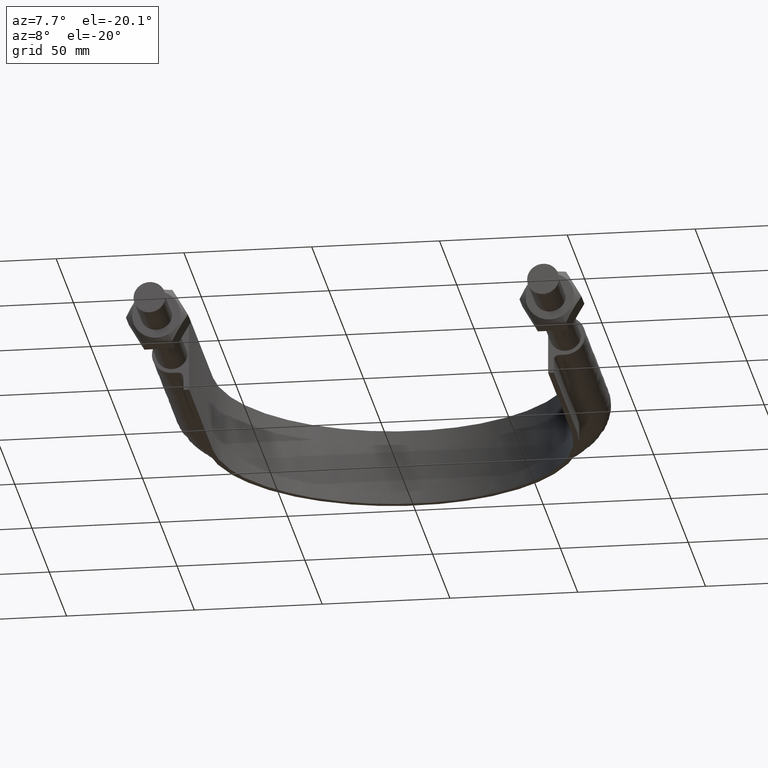
[diagram: clean part render]
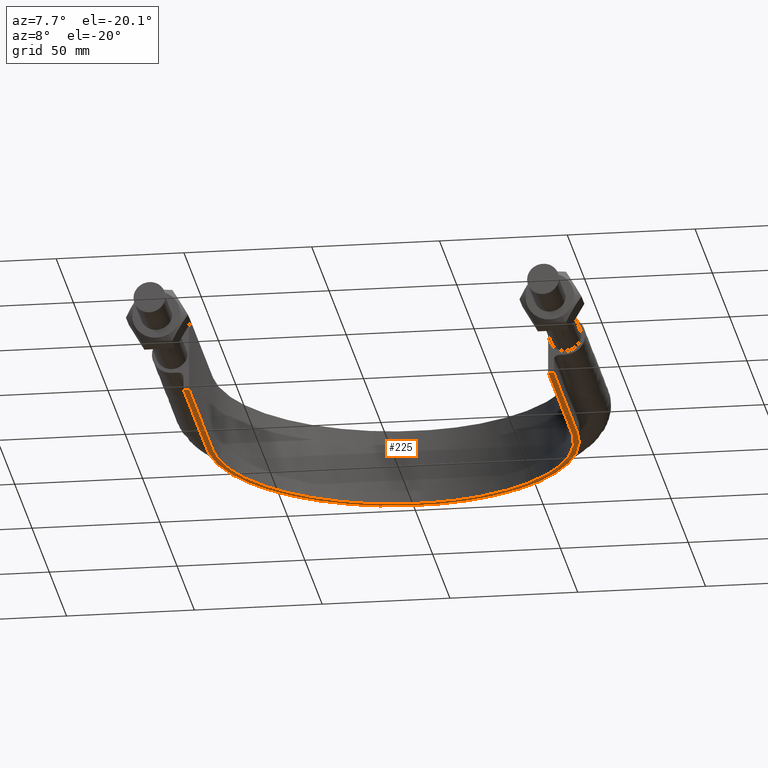
[diagram: same view with one face highlighted and labeled with its STEP entity id]
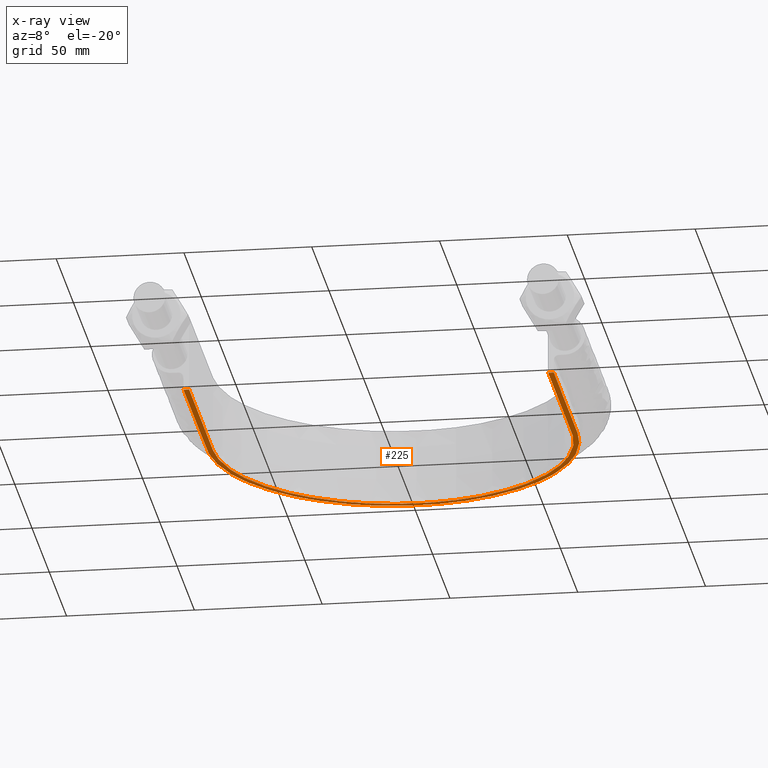
[diagram: x-ray of the same camera — body ghosted, the highlighted face saturated]
A machine part, auxiliary view. The second image highlights one B-rep face of the part: STEP entity #225.
The next image is the same camera in x-ray: the body ghosted, the highlighted face saturated — about 0% of this face is hidden behind the body in this view.
In plain terms, the highlighted planar face has unit normal (0, 0, 1).
Its self-contained STEP definition (entity closure, byte-faithful):
#225 = ADVANCED_FACE( '', ( #273 ), #274, .F. );
#273 = FACE_OUTER_BOUND( '', #1040, .T. );
#274 = PLANE( '', #1041 );
#1040 = EDGE_LOOP( '', ( #1346, #1347, #1348, #1349 ) );
#1041 = AXIS2_PLACEMENT_3D( '', #1350, #1351, #1352 );
#1346 = ORIENTED_EDGE( '', *, *, #1554, .F. );
#1347 = ORIENTED_EDGE( '', *, *, #1550, .F. );
#1348 = ORIENTED_EDGE( '', *, *, #1560, .F. );
#1349 = ORIENTED_EDGE( '', *, *, #1558, .F. );
#1350 = CARTESIAN_POINT( '', ( 100.000000000000, 264.710000000000, -15.0000000000000 ) );
#1351 = DIRECTION( '', ( 0.000000000000000, 0.000000000000000, 1.00000000000000 ) );
#1352 = DIRECTION( '', ( 1.00000000000000, 0.000000000000000, 0.000000000000000 ) );
#1550 = EDGE_CURVE( '', #1618, #1613, #1620, .T. );
#1554 = EDGE_CURVE( '', #1613, #1627, #1628, .T. );
#1558 = EDGE_CURVE( '', #1627, #1633, #1634, .T. );
#1560 = EDGE_CURVE( '', #1633, #1618, #1636, .T. );
#1613 = VERTEX_POINT( '', #1729 );
#1618 = VERTEX_POINT( '', #1736 );
#1620 = LINE( '', #1768, #1769 );
#1627 = VERTEX_POINT( '', #1811 );
#1628 = B_SPLINE_CURVE_WITH_KNOTS( '', 3, ( #1812, #1813, #1814, #1815, #1816, #1817, #1818, #1819, #1820, #1821, #1822, #1823, #1824, #1825, #1826, #1827 ), .UNSPECIFIED., .F., .F., ( 4, 3, 1, 1, 1, 1, 1, 1, 3, 4 ), ( -9.00000000000000, -8.00000000000000, -7.00000000000000, -6.00000000000000, -5.00000000000000, -4.00000000000000, -3.00000000000000, -2.00000000000000, -1.00000000000000, 0.000000000000000 ), .UNSPECIFIED. );
#1633 = VERTEX_POINT( '', #1849 );
#1634 = LINE( '', #1850, #1851 );
#1636 = B_SPLINE_CURVE_WITH_KNOTS( '', 3, ( #1883, #1884, #1885, #1886, #1887, #1888, #1889, #1890, #1891, #1892, #1893, #1894, #1895, #1896, #1897, #1898 ), .UNSPECIFIED., .F., .F., ( 4, 3, 1, 1, 1, 1, 1, 1, 3, 4 ), ( 0.000000000000000, 1.00000000000000, 2.00000000000000, 3.00000000000000, 4.00000000000000, 5.00000000000000, 6.00000000000000, 7.00000000000000, 8.00000000000000, 9.00000000000000 ), .UNSPECIFIED. );
#1729 = CARTESIAN_POINT( '', ( -70.2500000000000, 64.7100000000000, -15.0000000000000 ) );
#1736 = CARTESIAN_POINT( '', ( -72.4500000000000, 64.7100000000000, -15.0000000000000 ) );
#1768 = CARTESIAN_POINT( '', ( -100.000000000000, 64.7100000000000, -15.0000000000000 ) );
#1769 = VECTOR( '', #2169, 1000.00000000000 );
#1811 = CARTESIAN_POINT( '', ( 70.2500000000000, 64.7100000000000, -15.0000000000000 ) );
#1812 = CARTESIAN_POINT( '', ( -70.2500000000000, 64.7100000000000, -15.0000000000000 ) );
#1813 = CARTESIAN_POINT( '', ( -70.2500000000000, 87.7266666666667, -15.0000000000000 ) );
#1814 = CARTESIAN_POINT( '', ( -70.2500000000000, 110.743333333333, -15.0000000000000 ) );
#1815 = CARTESIAN_POINT( '', ( -70.2500000000000, 133.760000000000, -15.0000000000000 ) );
#1816 = CARTESIAN_POINT( '', ( -70.2500000000000, 144.249418134732, -15.0000000000000 ) );
#1817 = CARTESIAN_POINT( '', ( -65.4537147955432, 165.288971927909, -15.0000000000000 ) );
#1818 = CARTESIAN_POINT( '', ( -45.2953760364684, 190.556467088273, -15.0000000000000 ) );
#1819 = CARTESIAN_POINT( '', ( -16.1657325420394, 204.587129579273, -15.0000000000000 ) );
#1820 = CARTESIAN_POINT( '', ( 16.1657325420395, 204.587129579273, -15.0000000000000 ) );
#1821 = CARTESIAN_POINT( '', ( 45.2953760364684, 190.556467088273, -15.0000000000000 ) );
#1822 = CARTESIAN_POINT( '', ( 65.4537147955432, 165.288971927909, -15.0000000000000 ) );
#1823 = CARTESIAN_POINT( '', ( 70.2500000000000, 144.249418134732, -15.0000000000000 ) );
#1824 = CARTESIAN_POINT( '', ( 70.2500000000000, 133.760000000000, -15.0000000000000 ) );
#1825 = CARTESIAN_POINT( '', ( 70.2500000000000, 110.743333333333, -15.0000000000000 ) );
#1826 = CARTESIAN_POINT( '', ( 70.2500000000000, 87.7266666666667, -15.0000000000000 ) );
#1827 = CARTESIAN_POINT( '', ( 70.2500000000000, 64.7100000000000, -15.0000000000000 ) );
#1849 = CARTESIAN_POINT( '', ( 72.4500000000000, 64.7100000000000, -15.0000000000000 ) );
#1850 = CARTESIAN_POINT( '', ( -100.000000000000, 64.7100000000000, -15.0000000000000 ) );
#1851 = VECTOR( '', #2172, 1000.00000000000 );
#1883 = CARTESIAN_POINT( '', ( 72.4500000000000, 64.7100000000000, -15.0000000000000 ) );
#1884 = CARTESIAN_POINT( '', ( 72.4500000000000, 87.7266666666666, -15.0000000000000 ) );
#1885 = CARTESIAN_POINT( '', ( 72.4500000000000, 110.743333333333, -15.0000000000000 ) );
#1886 = CARTESIAN_POINT( '', ( 72.4500000000000, 133.760000000000, -15.0000000000000 ) );
#1887 = CARTESIAN_POINT( '', ( 72.4500000000000, 144.584175230504, -15.0000000000000 ) );
#1888 = CARTESIAN_POINT( '', ( 67.5035108460798, 166.273453800089, -15.0000000000000 ) );
#1889 = CARTESIAN_POINT( '', ( 46.7138789159023, 192.335910248336, -15.0000000000000 ) );
#1890 = CARTESIAN_POINT( '', ( 16.6719903583027, 206.805050635421, -15.0000000000000 ) );
#1891 = CARTESIAN_POINT( '', ( -16.6719903583025, 206.805050635421, -15.0000000000000 ) );
#1892 = CARTESIAN_POINT( '', ( -46.7138789159022, 192.335910248336, -15.0000000000000 ) );
#1893 = CARTESIAN_POINT( '', ( -67.5035108460798, 166.273453800089, -15.0000000000000 ) );
#1894 = CARTESIAN_POINT( '', ( -72.4500000000000, 144.584175230504, -15.0000000000000 ) );
#1895 = CARTESIAN_POINT( '', ( -72.4500000000000, 133.760000000000, -15.0000000000000 ) );
#1896 = CARTESIAN_POINT( '', ( -72.4500000000000, 110.743333333333, -15.0000000000000 ) );
#1897 = CARTESIAN_POINT( '', ( -72.4500000000000, 87.7266666666667, -15.0000000000000 ) );
#1898 = CARTESIAN_POINT( '', ( -72.4500000000000, 64.7100000000000, -15.0000000000000 ) );
#2169 = DIRECTION( '', ( 1.00000000000000, -1.22460635382238E-016, 0.000000000000000 ) );
#2172 = DIRECTION( '', ( 1.00000000000000, -1.22460635382238E-016, 0.000000000000000 ) );